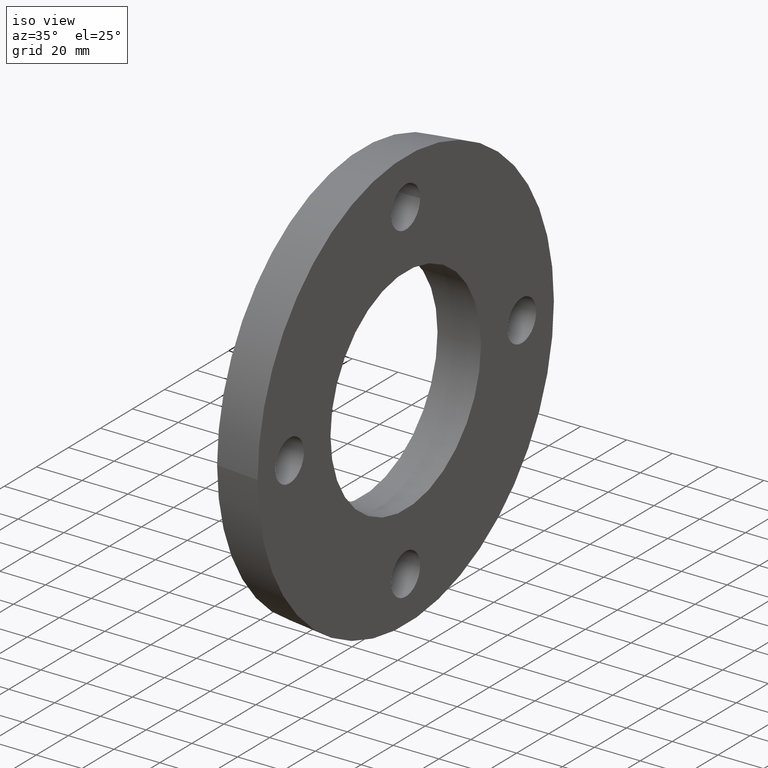
[diagram: clean part render]
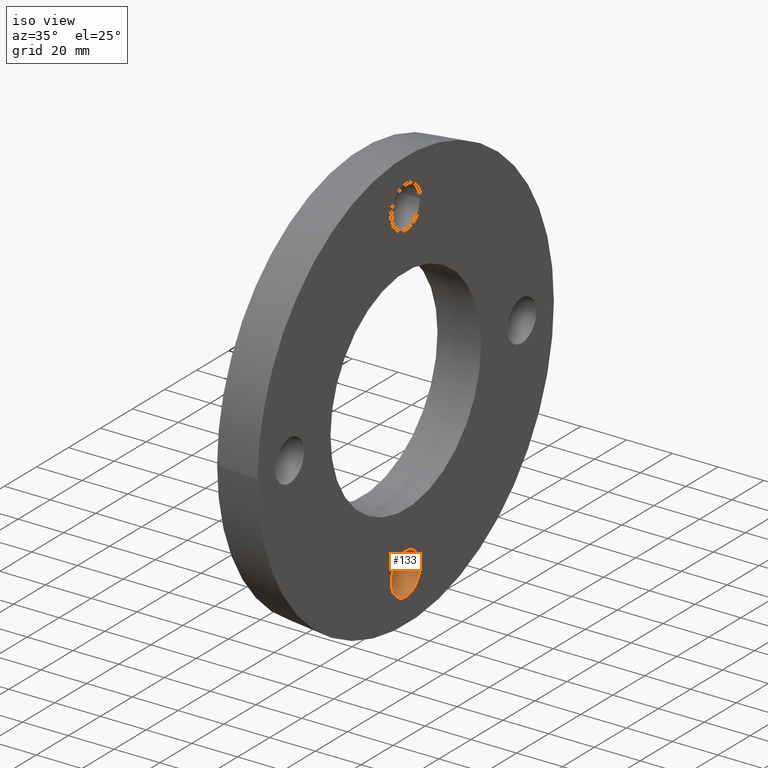
[diagram: same view with one face highlighted and labeled with its STEP entity id]
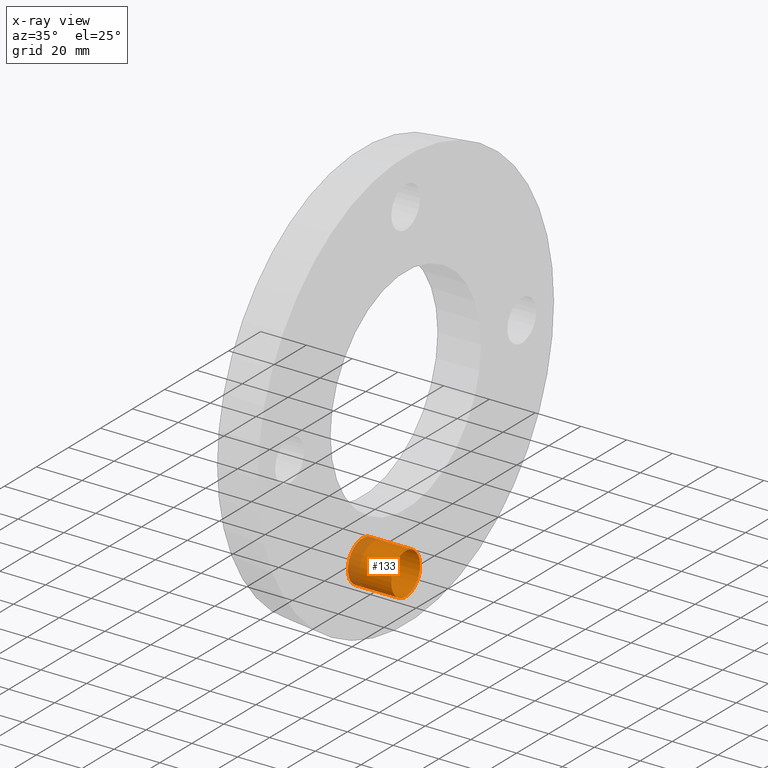
[diagram: x-ray of the same camera — body ghosted, the highlighted face saturated]
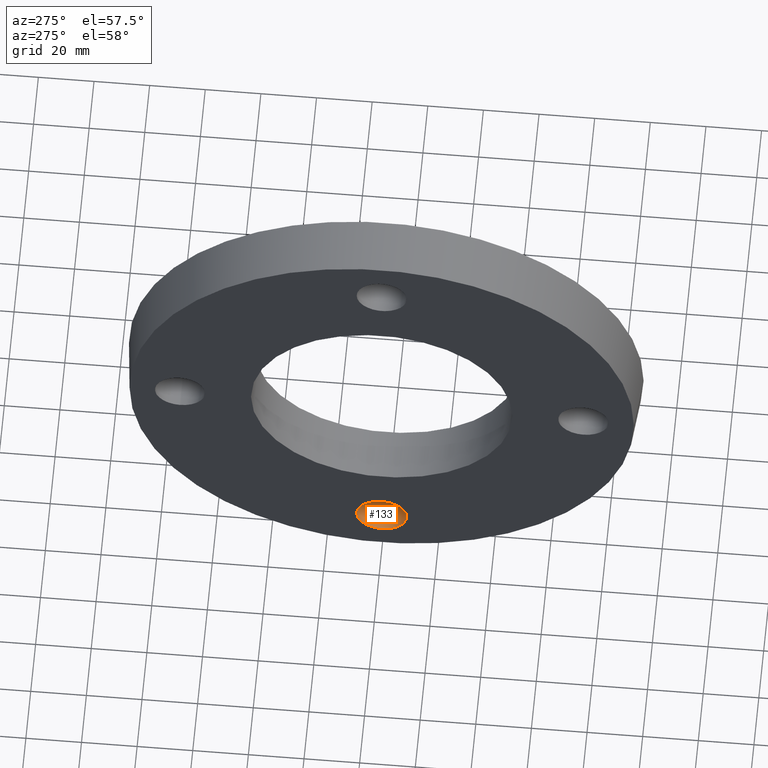
[diagram: same view with one face highlighted and labeled with its STEP entity id]
A machine part, iso view. The second image highlights one B-rep face of the part: STEP entity #133.
The next image is the same camera in x-ray: the body ghosted, the highlighted face saturated — about 18% of this face is hidden behind the body in this view.
A second angle (auxiliary view) of the same face is appended — the face is thin or edge-on in the first view.
In plain terms, the highlighted cylindrical surface (bore or boss wall) has radius 9 mm, axis along (-1, 0, 0).
Its self-contained STEP definition (entity closure, byte-faithful):
#20=FACE_BOUND('',#47,.T.);
#36=FACE_OUTER_BOUND('',#46,.T.);
#46=EDGE_LOOP('',(#106));
#47=EDGE_LOOP('',(#107));
#70=CIRCLE('',#148,9.);
#71=CIRCLE('',#149,9.);
#82=VERTEX_POINT('',#215);
#83=VERTEX_POINT('',#217);
#94=EDGE_CURVE('',#82,#82,#70,.T.);
#95=EDGE_CURVE('',#83,#83,#71,.T.);
#106=ORIENTED_EDGE('',*,*,#94,.F.);
#107=ORIENTED_EDGE('',*,*,#95,.F.);
#128=CYLINDRICAL_SURFACE('',#147,9.);
#133=ADVANCED_FACE('',(#36,#20),#128,.F.);
#147=AXIS2_PLACEMENT_3D('',#214,#175,#176);
#148=AXIS2_PLACEMENT_3D('',#216,#177,#178);
#149=AXIS2_PLACEMENT_3D('',#218,#179,#180);
#175=DIRECTION('center_axis',(-1.,0.,0.));
#176=DIRECTION('ref_axis',(0.,1.,6.12323399573677E-17));
#177=DIRECTION('center_axis',(1.,0.,0.));
#178=DIRECTION('ref_axis',(0.,1.,6.12323399573677E-17));
#179=DIRECTION('center_axis',(-1.,0.,0.));
#180=DIRECTION('ref_axis',(0.,1.,6.12323399573677E-17));
#214=CARTESIAN_POINT('Origin',(9.5,4.43934464690916E-15,-72.5));
#215=CARTESIAN_POINT('',(-9.5,-9.,-72.5));
#216=CARTESIAN_POINT('Origin',(-9.5,4.43934464690916E-15,-72.5));
#217=CARTESIAN_POINT('',(9.5,-9.,-72.5));
#218=CARTESIAN_POINT('Origin',(9.5,4.43934464690916E-15,-72.5));